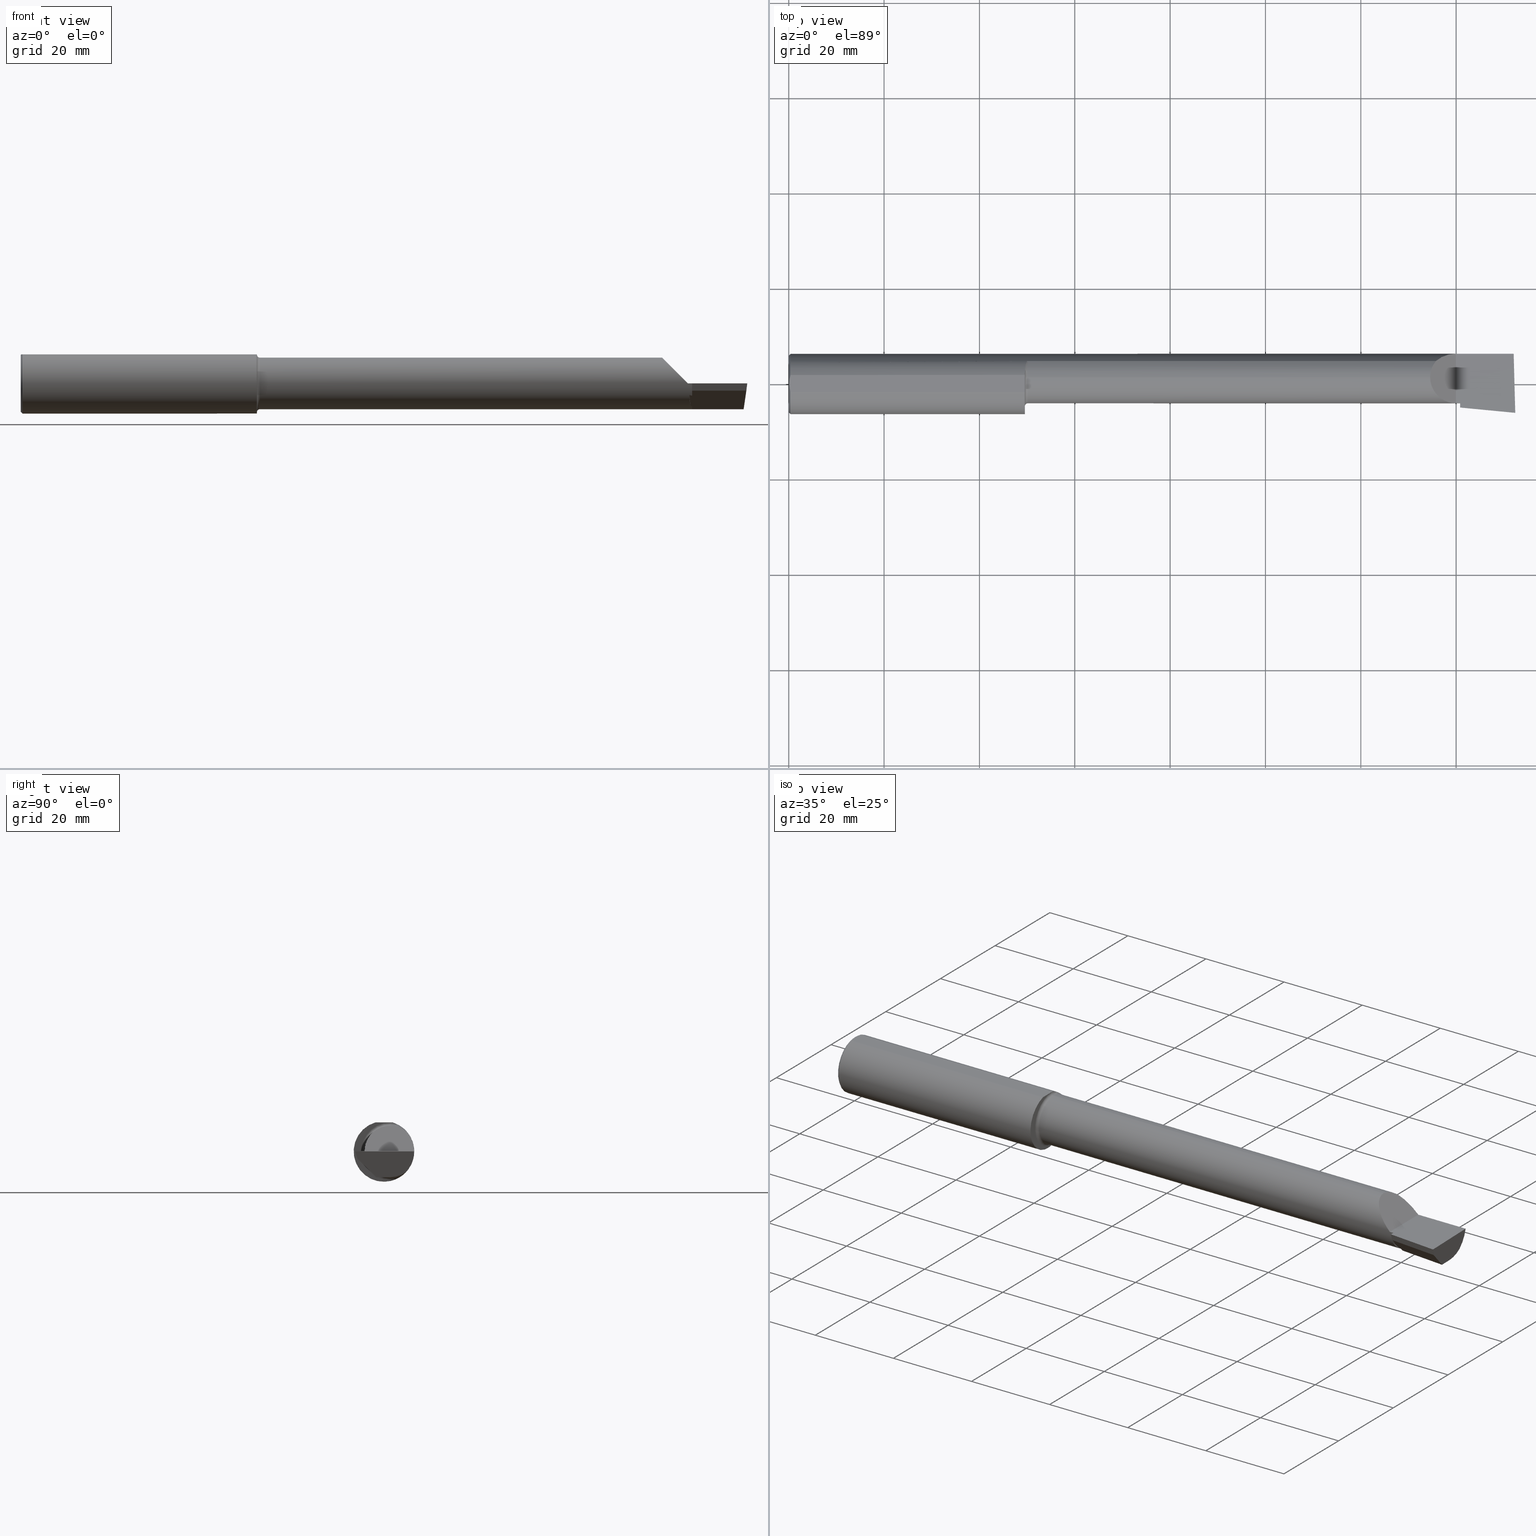
[diagram: canonical four-view strip — front | top / right | iso, engineering-drawing reading convention]
A machine part, canonical four-view strip (front | top / right | iso — engineering-drawing reading convention). The complete STEP part file that produces these views, byte-faithful:
ISO-10303-21;
HEADER;
FILE_DESCRIPTION (( 'STEP AP203' ),
    '1' );
FILE_NAME ('212169-LHB4904000.STEP',
    '2024-08-27T21:28:56',
    ( '' ),
    ( '' ),
    'SwSTEP 2.0',
    'SolidWorks 2024',
    '' );
FILE_SCHEMA (( 'CONFIG_CONTROL_DESIGN' ));
ENDSEC;

DATA;
#1 = CARTESIAN_POINT ( 'NONE',  ( 1.950000000000000844, -0.06997856814768405043, 0.2398500000000000076 ) ) ;
#2 = CARTESIAN_POINT ( 'NONE',  ( 6.000000000000000888, 0.05299999999999996381, -0.2131499999999999784 ) ) ;
#3 = VERTEX_POINT ( 'NONE', #376 ) ;
#4 = DIRECTION ( 'NONE',  ( 0.000000000000000000, 0.000000000000000000, 1.000000000000000000 ) ) ;
#5 = AXIS2_PLACEMENT_3D ( 'NONE', #303, #470, #649 ) ;
#6 = FACE_OUTER_BOUND ( 'NONE', #64, .T. ) ;
#7 = CC_DESIGN_APPROVAL ( #370, ( #191 ) ) ;
#8 = ORIENTED_EDGE ( 'NONE', *, *, #319, .F. ) ;
#9 = ADVANCED_FACE ( 'NONE', ( #199 ), #729, .F. ) ;
#10 = CARTESIAN_POINT ( 'NONE',  ( 0.004999999999999696527, 5.665694225652706815E-17, 0.2398500000000000076 ) ) ;
#11 = CARTESIAN_POINT ( 'NONE',  ( 1.967016733372314086, 0.1817333077058747859, -0.1714754572696086943 ) ) ;
#12 = ORIENTED_EDGE ( 'NONE', *, *, #687, .F. ) ;
#13 = ADVANCED_BREP_SHAPE_REPRESENTATION ( '212169-LHB4904000', ( #178, #490 ), #368 ) ;
#14 = FACE_OUTER_BOUND ( 'NONE', #93, .T. ) ;
#15 = DIRECTION ( 'NONE',  ( 0.000000000000000000, 0.000000000000000000, 1.000000000000000000 ) ) ;
#16 = ORIENTED_EDGE ( 'NONE', *, *, #273, .F. ) ;
#17 = EDGE_CURVE ( 'NONE', #272, #280, #430, .T. ) ;
#18 = CALENDAR_DATE ( 2024, 27, 8 ) ;
#19 = DIRECTION ( 'NONE',  ( 0.000000000000000000, -1.138839417068644240E-16, -1.000000000000000000 ) ) ;
#20 = AXIS2_PLACEMENT_3D ( 'NONE', #388, #748, #46 ) ;
#21 = VERTEX_POINT ( 'NONE', #318 ) ;
#22 = B_SPLINE_CURVE_WITH_KNOTS ( 'NONE', 3,
 ( #671, #549, #620, #254, #26, #314 ),
 .UNSPECIFIED., .F., .F.,
 ( 4, 2, 4 ),
 ( 0.004645211487754864060, 0.005540449869823556306, 0.006435688251892248551 ),
 .UNSPECIFIED. ) ;
#23 = PERSON_AND_ORGANIZATION_ROLE ( 'creator' ) ;
#24 = CARTESIAN_POINT ( 'NONE',  ( 6.000000000000000888, 0.2998500000000000609, 0.2398499999999999799 ) ) ;
#25 = CARTESIAN_POINT ( 'NONE',  ( 0.000000000000000000, 0.05299999999999998462, 0.000000000000000000 ) ) ;
#26 = CARTESIAN_POINT ( 'NONE',  ( 0.01181966702888973680, 0.05862357455657494359, 0.2398500000000000354 ) ) ;
#27 = ORIENTED_EDGE ( 'NONE', *, *, #338, .F. ) ;
#28 = DATE_TIME_ROLE ( 'creation_date' ) ;
#29 = DIRECTION ( 'NONE',  ( 0.000000000000000000, 0.000000000000000000, 1.000000000000000000 ) ) ;
#30 = ORIENTED_EDGE ( 'NONE', *, *, #551, .F. ) ;
#31 = CIRCLE ( 'NONE', #463, 0.2381500000000004447 ) ;
#32 = VECTOR ( 'NONE', #173, 39.37007874015748143 ) ;
#33 = EDGE_CURVE ( 'NONE', #72, #120, #344, .T. ) ;
#34 = CARTESIAN_POINT ( 'NONE',  ( 5.968970726278977956, 0.1868028301886785203, -0.1659208399614096885 ) ) ;
#35 = ORIENTED_EDGE ( 'NONE', *, *, #699, .F. ) ;
#36 = CARTESIAN_POINT ( 'NONE',  ( 1.973549916698494000, 0.1868028301886772713, 0.1659208399614111318 ) ) ;
#37 = DIRECTION ( 'NONE',  ( 1.000000000000000000, 0.000000000000000000, 0.000000000000000000 ) ) ;
#38 = EDGE_CURVE ( 'NONE', #550, #402, #79, .T. ) ;
#39 = CARTESIAN_POINT ( 'NONE',  ( 1.961269318387892202, 0.1703938977634084917, 0.1828127877825268810 ) ) ;
#40 = LINE ( 'NONE', #331, #89 ) ;
#41 = ORIENTED_EDGE ( 'NONE', *, *, #384, .F. ) ;
#42 = DIRECTION ( 'NONE',  ( -1.000000000000000000, -0.000000000000000000, -0.000000000000000000 ) ) ;
#43 = ORIENTED_EDGE ( 'NONE', *, *, #752, .T. ) ;
#44 = EDGE_CURVE ( 'NONE', #596, #346, #754, .T. ) ;
#45 = CARTESIAN_POINT ( 'NONE',  ( 5.544999999999999929, -0.05074392122494177787, -0.1861991442216453241 ) ) ;
#46 = DIRECTION ( 'NONE',  ( 0.000000000000000000, 0.000000000000000000, 1.000000000000000000 ) ) ;
#47 = ORIENTED_EDGE ( 'NONE', *, *, #613, .F. ) ;
#48 = ADVANCED_FACE ( 'NONE', ( #255 ), #499, .T. ) ;
#49 = DIRECTION ( 'NONE',  ( 0.000000000000000000, 0.000000000000000000, 1.000000000000000000 ) ) ;
#50 = CARTESIAN_POINT ( 'NONE',  ( 1.950000000000000844, 0.06997856814768384226, 0.2398500000000000076 ) ) ;
#51 = ORIENTED_EDGE ( 'NONE', *, *, #603, .T. ) ;
#52 = VECTOR ( 'NONE', #328, 39.37007874015748143 ) ;
#53 = LOCAL_TIME ( 14, 28, 56.00000000000000000, #540 ) ;
#54 = CARTESIAN_POINT ( 'NONE',  ( 5.965646124279056828, 0.1021668565906564824, -0.2131500000000002559 ) ) ;
#55 = CC_DESIGN_PERSON_AND_ORGANIZATION_ASSIGNMENT ( #478, #670, ( #112 ) ) ;
#56 = LINE ( 'NONE', #155, #488 ) ;
#57 = ORIENTED_EDGE ( 'NONE', *, *, #316, .T. ) ;
#58 = CARTESIAN_POINT ( 'NONE',  ( 5.519046046773249614, -0.1728339770796962493, -0.06000000000000024064 ) ) ;
#59 = DIRECTION ( 'NONE',  ( 1.000000000000000000, 0.000000000000000000, 0.000000000000000000 ) ) ;
#60 = ORIENTED_EDGE ( 'NONE', *, *, #642, .F. ) ;
#61 = EDGE_CURVE ( 'NONE', #550, #262, #669, .T. ) ;
#62 = DIRECTION ( 'NONE',  ( 0.000000000000000000, 0.000000000000000000, 1.000000000000000000 ) ) ;
#63 = CARTESIAN_POINT ( 'NONE',  ( 5.344079160038587517, 0.1868028301886764386, 0.1659208399614117424 ) ) ;
#64 = EDGE_LOOP ( 'NONE', ( #615, #762, #180, #720 ) ) ;
#65 = CARTESIAN_POINT ( 'NONE',  ( 5.984159346317754036, -0.1618214701366295083, -0.1165188729350214586 ) ) ;
#66 = VECTOR ( 'NONE', #439, 39.37007874015748143 ) ;
#67 = CARTESIAN_POINT ( 'NONE',  ( 0.01499999999999998904, 0.000000000000000000, 0.000000000000000000 ) ) ;
#68 = VERTEX_POINT ( 'NONE', #105 ) ;
#69 = CARTESIAN_POINT ( 'NONE',  ( 5.527364221733844118, -0.08644642713185432537, -0.1670589636038932180 ) ) ;
#70 = EDGE_CURVE ( 'NONE', #103, #480, #639, .T. ) ;
#71 = PLANE ( 'NONE',  #755 ) ;
#72 = VERTEX_POINT ( 'NONE', #693 ) ;
#73 = ADVANCED_FACE ( 'NONE', ( #98 ), #576, .F. ) ;
#74 = DIRECTION ( 'NONE',  ( 1.000000000000000000, 0.000000000000000000, 0.000000000000000000 ) ) ;
#75 = ORIENTED_EDGE ( 'NONE', *, *, #33, .T. ) ;
#76 = APPLICATION_PROTOCOL_DEFINITION ( 'international standard', 'config_control_design', 1994, #188 ) ;
#77 = CARTESIAN_POINT ( 'NONE',  ( 5.522499172395932021, -0.1369718963205483198, -0.09666230448512452833 ) ) ;
#78 = VECTOR ( 'NONE', #74, 39.37007874015748143 ) ;
#79 = LINE ( 'NONE', #426, #124 ) ;
#80 = PERSON_AND_ORGANIZATION ( #425, #503 ) ;
#81 = FACE_OUTER_BOUND ( 'NONE', #106, .T. ) ;
#82 = EDGE_LOOP ( 'NONE', ( #653, #27, #483, #364 ) ) ;
#83 = APPROVAL_DATE_TIME ( #721, #356 ) ;
#84 = DIRECTION ( 'NONE',  ( -1.104388423966789920E-16, 0.000000000000000000, -1.000000000000000000 ) ) ;
#85 = VERTEX_POINT ( 'NONE', #697 ) ;
#86 = CC_DESIGN_PERSON_AND_ORGANIZATION_ASSIGNMENT ( #428, #23, ( #491 ) ) ;
#87 = PLANE ( 'NONE',  #450 ) ;
#88 = VERTEX_POINT ( 'NONE', #50 ) ;
#89 = VECTOR ( 'NONE', #688, 39.37007874015748143 ) ;
#90 = AXIS2_PLACEMENT_3D ( 'NONE', #704, #177, #121 ) ;
#91 = CARTESIAN_POINT ( 'NONE',  ( 1.972248316546591385, 0.1862833954073865594, 0.1665066509556033247 ) ) ;
#92 = ADVANCED_FACE ( 'NONE', ( #744 ), #681, .T. ) ;
#93 = EDGE_LOOP ( 'NONE', ( #123, #511, #672, #406 ) ) ;
#94 = CARTESIAN_POINT ( 'NONE',  ( 5.537805100486888676, -0.1353538176560926398, -0.09979413120599961440 ) ) ;
#95 = CARTESIAN_POINT ( 'NONE',  ( 0.01499999999999998904, 0.000000000000000000, 0.000000000000000000 ) ) ;
#96 = EDGE_LOOP ( 'NONE', ( #128, #170, #712, #216, #41 ) ) ;
#97 = CARTESIAN_POINT ( 'NONE',  ( 5.540481425188588105, -0.04977693083852371969, -0.1867379188486353314 ) ) ;
#98 = FACE_OUTER_BOUND ( 'NONE', #418, .T. ) ;
#99 = VERTEX_POINT ( 'NONE', #340 ) ;
#100 = VECTOR ( 'NONE', #217, 39.37007874015748143 ) ;
#101 = CARTESIAN_POINT ( 'NONE',  ( 0.01499999999999998904, 0.000000000000000000, 0.000000000000000000 ) ) ;
#102 = CARTESIAN_POINT ( 'NONE',  ( 1.950000000000000844, 0.05299999999999998462, 0.000000000000000000 ) ) ;
#103 = VERTEX_POINT ( 'NONE', #504 ) ;
#104 = DIRECTION ( 'NONE',  ( -1.000000000000000000, -0.000000000000000000, -0.000000000000000000 ) ) ;
#105 = CARTESIAN_POINT ( 'NONE',  ( 1.950000000000000844, 0.08036415094339427467, -0.2365726648265757404 ) ) ;
#106 = EDGE_LOOP ( 'NONE', ( #305, #647, #759, #456 ) ) ;
#107 = FACE_OUTER_BOUND ( 'NONE', #588, .T. ) ;
#108 = DIRECTION ( 'NONE',  ( -0.02677973311239235238, 0.9996413586354002678, -2.566230189353009768E-16 ) ) ;
#109 =( BOUNDED_CURVE ( )  B_SPLINE_CURVE ( 3, ( #654, #69, #423, #659 ),
 .UNSPECIFIED., .F., .F. ) 
 B_SPLINE_CURVE_WITH_KNOTS ( ( 4, 4 ),
 ( 5.205137849474834155, 5.812503257434993742 ),
 .UNSPECIFIED. ) 
 CURVE ( )  GEOMETRIC_REPRESENTATION_ITEM ( )  RATIONAL_B_SPLINE_CURVE ( ( 1.000000000000000000, 0.9694944665783493676, 0.9694944665783493676, 1.000000000000000000 ) ) 
 REPRESENTATION_ITEM ( '' )  );
#110 = VERTEX_POINT ( 'NONE', #573 ) ;
#111 = TOROIDAL_SURFACE ( 'NONE', #307, 0.2381500000000004447, 0.02499999999999995628 ) ;
#112 = PRODUCT_DEFINITION_FORMATION_WITH_SPECIFIED_SOURCE ( 'ANY', '', #167, .NOT_KNOWN. ) ;
#113 = PLANE ( 'NONE',  #150 ) ;
#114 = DIRECTION ( 'NONE',  ( 0.000000000000000000, 0.000000000000000000, 1.000000000000000000 ) ) ;
#115 = EDGE_CURVE ( 'NONE', #464, #21, #153, .T. ) ;
#116 = ORIENTED_EDGE ( 'NONE', *, *, #381, .T. ) ;
#117 = CALENDAR_DATE ( 2024, 27, 8 ) ;
#118 = CARTESIAN_POINT ( 'NONE',  ( 5.296849999999999170, 0.05299999999999998462, 0.2131500000000002004 ) ) ;
#119 = DIRECTION ( 'NONE',  ( 0.000000000000000000, 0.000000000000000000, 1.000000000000000000 ) ) ;
#120 = VERTEX_POINT ( 'NONE', #215 ) ;
#121 = DIRECTION ( 'NONE',  ( 0.000000000000000000, 0.000000000000000000, 1.000000000000000000 ) ) ;
#122 = DIRECTION ( 'NONE',  ( -1.000000000000000000, -0.000000000000000000, -0.000000000000000000 ) ) ;
#123 = ORIENTED_EDGE ( 'NONE', *, *, #619, .F. ) ;
#124 = VECTOR ( 'NONE', #37, 39.37007874015748143 ) ;
#125 = AXIS2_PLACEMENT_3D ( 'NONE', #24, #19, #147 ) ;
#126 = CARTESIAN_POINT ( 'NONE',  ( 3.760000000000000231, 0.1868028301886785203, 0.1659208399614096885 ) ) ;
#127 = PLANE ( 'NONE',  #5 ) ;
#128 = ORIENTED_EDGE ( 'NONE', *, *, #165, .F. ) ;
#129 = CARTESIAN_POINT ( 'NONE',  ( 1.975000000000000755, 0.05300000000000001238, -0.2131500000000003947 ) ) ;
#130 = ORIENTED_EDGE ( 'NONE', *, *, #17, .F. ) ;
#131 = CC_DESIGN_PERSON_AND_ORGANIZATION_ASSIGNMENT ( #202, #420, ( #191 ) ) ;
#132 = CARTESIAN_POINT ( 'NONE',  ( 1.975000000000000755, 0.05299999999999998462, 0.000000000000000000 ) ) ;
#133 = VERTEX_POINT ( 'NONE', #684 ) ;
#134 =( CONVERSION_BASED_UNIT ( 'INCH', #489 ) LENGTH_UNIT ( ) NAMED_UNIT ( #387 ) );
#135 = AXIS2_PLACEMENT_3D ( 'NONE', #141, #208, #148 ) ;
#136 = CARTESIAN_POINT ( 'NONE',  ( 6.000000000000000888, -0.2500000000000000555, -2.390366994456230070E-16 ) ) ;
#137 = AXIS2_PLACEMENT_3D ( 'NONE', #457, #594, #352 ) ;
#138 = ORIENTED_EDGE ( 'NONE', *, *, #319, .T. ) ;
#139 = PERSON_AND_ORGANIZATION_ROLE ( 'design_supplier' ) ;
#140 = FACE_OUTER_BOUND ( 'NONE', #329, .T. ) ;
#141 = CARTESIAN_POINT ( 'NONE',  ( 0.000000000000000000, 0.000000000000000000, 0.000000000000000000 ) ) ;
#142 = DATE_AND_TIME ( #194, #657 ) ;
#143 = LINE ( 'NONE', #722, #645 ) ;
#144 = VERTEX_POINT ( 'NONE', #397 ) ;
#145 = UNCERTAINTY_MEASURE_WITH_UNIT (LENGTH_MEASURE( 1.000000000000000082E-05 ), #134, 'distance_accuracy_value', 'NONE');
#146 = EDGE_CURVE ( 'NONE', #315, #296, #56, .T. ) ;
#147 = DIRECTION ( 'NONE',  ( 0.000000000000000000, 1.000000000000000000, -1.138839417068644240E-16 ) ) ;
#148 = DIRECTION ( 'NONE',  ( 0.000000000000000000, 0.000000000000000000, 1.000000000000000000 ) ) ;
#149 = VECTOR ( 'NONE', #256, 39.37007874015748854 ) ;
#150 = AXIS2_PLACEMENT_3D ( 'NONE', #58, #526, #473 ) ;
#151 = APPROVAL_ROLE ( '' ) ;
#152 = DIRECTION ( 'NONE',  ( 0.000000000000000000, -0.3019700370129928535, 0.9533174165755975427 ) ) ;
#153 = LINE ( 'NONE', #169, #259 ) ;
#154 = LINE ( 'NONE', #532, #32 ) ;
#155 = CARTESIAN_POINT ( 'NONE',  ( 5.966986964385321279, 0.05211560253549542970, -0.2131499999999999784 ) ) ;
#156 = ORIENTED_EDGE ( 'NONE', *, *, #186, .F. ) ;
#157 = DIRECTION ( 'NONE',  ( 1.000000000000000000, 0.000000000000000000, 0.000000000000000000 ) ) ;
#158 = DIRECTION ( 'NONE',  ( -1.000000000000000000, -0.000000000000000000, -0.000000000000000000 ) ) ;
#159 = CONICAL_SURFACE ( 'NONE', #555, 0.2498499999999999888, 0.7853981633974603804 ) ;
#160 = ORIENTED_EDGE ( 'NONE', *, *, #460, .F. ) ;
#161 = VECTOR ( 'NONE', #565, 39.37007874015748143 ) ;
#162 = CC_DESIGN_APPROVAL ( #455, ( #112 ) ) ;
#163 = CARTESIAN_POINT ( 'NONE',  ( 5.510000000000000675, -0.1601500000000002644, -1.849216666712503932E-16 ) ) ;
#164 = CARTESIAN_POINT ( 'NONE',  ( 0.000000000000000000, 0.05299999999999998462, 0.000000000000000000 ) ) ;
#165 = EDGE_CURVE ( 'NONE', #708, #85, #623, .T. ) ;
#166 = ORIENTED_EDGE ( 'NONE', *, *, #500, .F. ) ;
#167 = PRODUCT ( '212169-LHB4904000', '212169-LHB4904000', '', ( #263 ) ) ;
#168 = CARTESIAN_POINT ( 'NONE',  ( 1.969294329172794011, 0.1841965204963167124, 0.1688138510234158673 ) ) ;
#169 = CARTESIAN_POINT ( 'NONE',  ( 3.760000000000000231, 0.1868028301886785203, -0.1659208399614096885 ) ) ;
#170 = ORIENTED_EDGE ( 'NONE', *, *, #715, .T. ) ;
#171 = COORDINATED_UNIVERSAL_TIME_OFFSET ( 8, 0, .BEHIND. ) ;
#172 = ADVANCED_FACE ( 'NONE', ( #751 ), #385, .F. ) ;
#173 = DIRECTION ( 'NONE',  ( -0.9953961983671787417, 0.09584575252022423109, -2.614745597736306358E-17 ) ) ;
#174 = LINE ( 'NONE', #408, #78 ) ;
#175 = ORIENTED_EDGE ( 'NONE', *, *, #392, .T. ) ;
#176 = AXIS2_PLACEMENT_3D ( 'NONE', #424, #492, #541 ) ;
#177 = DIRECTION ( 'NONE',  ( -1.000000000000000000, -0.000000000000000000, -0.000000000000000000 ) ) ;
#178 = MANIFOLD_SOLID_BREP ( 'Extrude7', #355 ) ;
#179 = CARTESIAN_POINT ( 'NONE',  ( 5.970126340504450013, -0.06507190623553218978, -0.2131499999999999506 ) ) ;
#180 = ORIENTED_EDGE ( 'NONE', *, *, #306, .F. ) ;
#181 = DIRECTION ( 'NONE',  ( 0.000000000000000000, 0.000000000000000000, -1.000000000000000000 ) ) ;
#182 = DIRECTION ( 'NONE',  ( -0.1175789623991730370, 0.000000000000000000, -0.9930635365378861490 ) ) ;
#183 = ORIENTED_EDGE ( 'NONE', *, *, #283, .T. ) ;
#184 = EDGE_CURVE ( 'NONE', #640, #272, #626, .T. ) ;
#185 = CARTESIAN_POINT ( 'NONE',  ( 0.000000000000000000, 0.000000000000000000, 0.000000000000000000 ) ) ;
#186 = EDGE_CURVE ( 'NONE', #698, #280, #40, .T. ) ;
#187 = ORIENTED_EDGE ( 'NONE', *, *, #513, .F. ) ;
#188 = APPLICATION_CONTEXT ( 'configuration controlled 3d designs of mechanical parts and assemblies' ) ;
#189 = AXIS2_PLACEMENT_3D ( 'NONE', #164, #510, #630 ) ;
#190 = CARTESIAN_POINT ( 'NONE',  ( 5.296849999999997394, -0.07186037918017490478, 0.2131500000000002004 ) ) ;
#191 = SECURITY_CLASSIFICATION ( '', '', #731 ) ;
#192 = DIRECTION ( 'NONE',  ( 0.000000000000000000, 0.000000000000000000, 1.000000000000000000 ) ) ;
#193 = ORIENTED_EDGE ( 'NONE', *, *, #547, .T. ) ;
#194 = CALENDAR_DATE ( 2024, 27, 8 ) ;
#195 = ORIENTED_EDGE ( 'NONE', *, *, #392, .F. ) ;
#196 = APPROVAL_STATUS ( 'not_yet_approved' ) ;
#197 = EDGE_CURVE ( 'NONE', #480, #346, #451, .T. ) ;
#198 = DIRECTION ( 'NONE',  ( 0.000000000000000000, -1.000000000000000000, 2.565624566557734573E-16 ) ) ;
#199 = FACE_OUTER_BOUND ( 'NONE', #520, .T. ) ;
#200 = CARTESIAN_POINT ( 'NONE',  ( 1.975000000000000755, 0.05299999999999998462, 0.2131500000000003947 ) ) ;
#201 = ORIENTED_EDGE ( 'NONE', *, *, #33, .F. ) ;
#202 = PERSON_AND_ORGANIZATION ( #425, #503 ) ;
#203 = CARTESIAN_POINT ( 'NONE',  ( 0.005880636388018911122, -0.02358947477502554638, 0.2398499999999999799 ) ) ;
#204 = ORIENTED_EDGE ( 'NONE', *, *, #562, .T. ) ;
#205 = EDGE_CURVE ( 'NONE', #120, #72, #487, .T. ) ;
#206 = APPROVAL_DATE_TIME ( #641, #370 ) ;
#207 = CARTESIAN_POINT ( 'NONE',  ( 0.01180609504125302439, -0.05857511741890349816, 0.2398500000000000354 ) ) ;
#208 = DIRECTION ( 'NONE',  ( -1.000000000000000000, -0.000000000000000000, -0.000000000000000000 ) ) ;
#209 = EDGE_CURVE ( 'NONE', #110, #727, #31, .T. ) ;
#210 = DIRECTION ( 'NONE',  ( 0.000000000000000000, 0.000000000000000000, -1.000000000000000000 ) ) ;
#211 = DIRECTION ( 'NONE',  ( 0.000000000000000000, 0.000000000000000000, 1.000000000000000000 ) ) ;
#212 = AXIS2_PLACEMENT_3D ( 'NONE', #379, #373, #621 ) ;
#213 = PRODUCT_RELATED_PRODUCT_CATEGORY ( 'detail', '', ( #167 ) ) ;
#214 = CARTESIAN_POINT ( 'NONE',  ( 1.970147539572910000, 0.1849815983377215145, 0.1679517088135090153 ) ) ;
#215 = CARTESIAN_POINT ( 'NONE',  ( 0.000000000000000000, 0.000000000000000000, -0.2348499999999996424 ) ) ;
#216 = ORIENTED_EDGE ( 'NONE', *, *, #381, .F. ) ;
#217 = DIRECTION ( 'NONE',  ( 0.9953961983671787417, -0.09584575252022418945, -1.087413588444485978E-16 ) ) ;
#218 = DIRECTION ( 'NONE',  ( -1.000000000000000000, -0.000000000000000000, -0.000000000000000000 ) ) ;
#219 = ORIENTED_EDGE ( 'NONE', *, *, #433, .T. ) ;
#220 = CARTESIAN_POINT ( 'NONE',  ( 5.531082512009721341, -0.04783050615766612501, -0.1877927888072088158 ) ) ;
#221 = EDGE_CURVE ( 'NONE', #88, #727, #332, .T. ) ;
#222 = DIRECTION ( 'NONE',  ( -0.09584575252022360659, -0.9953961983671787417, 0.000000000000000000 ) ) ;
#223 = ORIENTED_EDGE ( 'NONE', *, *, #70, .T. ) ;
#224 = AXIS2_PLACEMENT_3D ( 'NONE', #244, #302, #4 ) ;
#225 = APPLICATION_CONTEXT ( 'configuration controlled 3d designs of mechanical parts and assemblies' ) ;
#226 = CARTESIAN_POINT ( 'NONE',  ( 1.952700393434439796, 0.1312406203802467530, 0.2128933010837861517 ) ) ;
#227 = CARTESIAN_POINT ( 'NONE',  ( 5.544999999999999929, 0.05299999999999996381, -0.2131499999999999784 ) ) ;
#228 = VERTEX_POINT ( 'NONE', #507 ) ;
#229 = EDGE_CURVE ( 'NONE', #596, #110, #617, .T. ) ;
#230 = DIRECTION ( 'NONE',  ( 0.000000000000000000, 0.000000000000000000, 1.000000000000000000 ) ) ;
#231 = CARTESIAN_POINT ( 'NONE',  ( 1.970138573936400572, 0.1849738682364307496, -0.1679602226613276517 ) ) ;
#232 = ORIENTED_EDGE ( 'NONE', *, *, #146, .T. ) ;
#233 = DIRECTION ( 'NONE',  ( 1.000000000000000000, 0.000000000000000000, 0.000000000000000000 ) ) ;
#234 = CARTESIAN_POINT ( 'NONE',  ( 1.975000000000000755, 0.1868028301886771048, -0.1659208399614111318 ) ) ;
#235 = EDGE_LOOP ( 'NONE', ( #627, #716, #160, #371, #723 ) ) ;
#236 = VECTOR ( 'NONE', #447, 39.37007874015748143 ) ;
#237 = VECTOR ( 'NONE', #469, 39.37007874015748143 ) ;
#238 = DIRECTION ( 'NONE',  ( 0.7071067811865389130, 0.000000000000000000, -0.7071067811865560104 ) ) ;
#239 = LINE ( 'NONE', #710, #656 ) ;
#240 = EDGE_LOOP ( 'NONE', ( #285, #459 ) ) ;
#241 = DIRECTION ( 'NONE',  ( -1.000000000000000000, -0.000000000000000000, -0.000000000000000000 ) ) ;
#242 = CARTESIAN_POINT ( 'NONE',  ( 5.992367153641839472, -0.2184096159518783276, -0.06000000000000023370 ) ) ;
#243 = ORIENTED_EDGE ( 'NONE', *, *, #273, .T. ) ;
#244 = CARTESIAN_POINT ( 'NONE',  ( 0.01499999999999998904, 0.000000000000000000, 0.000000000000000000 ) ) ;
#245 = CARTESIAN_POINT ( 'NONE',  ( 1.951227564404961701, 0.1217005943024271619, -0.2193523119135149246 ) ) ;
#246 = VERTEX_POINT ( 'NONE', #394 ) ;
#247 = AXIS2_PLACEMENT_3D ( 'NONE', #758, #42, #275 ) ;
#248 = DATE_AND_TIME ( #18, #53 ) ;
#249 = APPROVAL_PERSON_ORGANIZATION ( #612, #370, #151 ) ;
#250 = PLANE ( 'NONE',  #125 ) ;
#251 = EDGE_LOOP ( 'NONE', ( #412, #51, #223, #554 ) ) ;
#252 = ADVANCED_FACE ( 'NONE', ( #634 ), #159, .T. ) ;
#253 = COORDINATED_UNIVERSAL_TIME_OFFSET ( 8, 0, .BEHIND. ) ;
#254 = CARTESIAN_POINT ( 'NONE',  ( 0.009312860630924877509, 0.04712480857212048013, 0.2398500000000000076 ) ) ;
#255 = FACE_OUTER_BOUND ( 'NONE', #235, .T. ) ;
#256 = DIRECTION ( 'NONE',  ( 0.02677973311239231768, -0.9996413586354002678, -2.916664445122107707E-18 ) ) ;
#257 = EDGE_LOOP ( 'NONE', ( #201, #219, #116, #138, #47 ) ) ;
#258 = COORDINATED_UNIVERSAL_TIME_OFFSET ( 8, 0, .BEHIND. ) ;
#259 = VECTOR ( 'NONE', #443, 39.37007874015748143 ) ;
#260 = CARTESIAN_POINT ( 'NONE',  ( 0.004999999999999696527, 5.665694225652706815E-17, 0.2398500000000000076 ) ) ;
#261 = ADVANCED_FACE ( 'NONE', ( #299 ), #417, .T. ) ;
#262 = VERTEX_POINT ( 'NONE', #534 ) ;
#263 = MECHANICAL_CONTEXT ( 'NONE', #188, 'mechanical' ) ;
#264 = PLANE ( 'NONE',  #543 ) ;
#265 = CARTESIAN_POINT ( 'NONE',  ( 1.950000000000000844, -0.1851500000000004531, 0.000000000000000000 ) ) ;
#266 = FACE_OUTER_BOUND ( 'NONE', #584, .T. ) ;
#267 = CC_DESIGN_PERSON_AND_ORGANIZATION_ASSIGNMENT ( #725, #139, ( #112 ) ) ;
#268 = ORIENTED_EDGE ( 'NONE', *, *, #316, .F. ) ;
#269 = CARTESIAN_POINT ( 'NONE',  ( 0.000000000000000000, 0.000000000000000000, 0.000000000000000000 ) ) ;
#270 = CARTESIAN_POINT ( 'NONE',  ( 5.510000000000000675, -0.2500000000000000555, -1.849216666712503932E-16 ) ) ;
#271 = AXIS2_PLACEMENT_3D ( 'NONE', #629, #380, #747 ) ;
#272 = VERTEX_POINT ( 'NONE', #292 ) ;
#273 = EDGE_CURVE ( 'NONE', #272, #395, #239, .T. ) ;
#274 = FACE_OUTER_BOUND ( 'NONE', #410, .T. ) ;
#275 = DIRECTION ( 'NONE',  ( 0.000000000000000000, 0.000000000000000000, 1.000000000000000000 ) ) ;
#276 = ORIENTED_EDGE ( 'NONE', *, *, #742, .T. ) ;
#277 = EDGE_CURVE ( 'NONE', #296, #480, #595, .T. ) ;
#278 = CARTESIAN_POINT ( 'NONE',  ( 5.535842168685241482, -0.04880577283880128958, -0.1872691444557821050 ) ) ;
#279 = DIRECTION ( 'NONE',  ( 1.000000000000000000, 0.000000000000000000, 0.000000000000000000 ) ) ;
#280 = VERTEX_POINT ( 'NONE', #242 ) ;
#281 = CARTESIAN_POINT ( 'NONE',  ( 1.950000000000000844, 0.08036415094339427467, 0.2365726648265757404 ) ) ;
#282 = CARTESIAN_POINT ( 'NONE',  ( 0.000000000000000000, -0.06997856814768378675, 0.2398499999999999244 ) ) ;
#283 = EDGE_CURVE ( 'NONE', #133, #88, #174, .T. ) ;
#284 = AXIS2_PLACEMENT_3D ( 'NONE', #67, #348, #192 ) ;
#285 = ORIENTED_EDGE ( 'NONE', *, *, #500, .T. ) ;
#286 = AXIS2_PLACEMENT_3D ( 'NONE', #399, #241, #230 ) ;
#287 = LINE ( 'NONE', #700, #544 ) ;
#288 = CARTESIAN_POINT ( 'NONE',  ( 0.000000000000000000, 0.000000000000000000, 0.000000000000000000 ) ) ;
#289 = EDGE_CURVE ( 'NONE', #402, #395, #523, .T. ) ;
#290 = ORIENTED_EDGE ( 'NONE', *, *, #663, .T. ) ;
#291 = DIRECTION ( 'NONE',  ( 0.000000000000000000, 1.000000000000000000, -1.138839417068644240E-16 ) ) ;
#292 = CARTESIAN_POINT ( 'NONE',  ( 5.544999999999999929, -0.1753330585328634617, -0.06000000000000024758 ) ) ;
#293 = ORIENTED_EDGE ( 'NONE', *, *, #409, .T. ) ;
#294 = CARTESIAN_POINT ( 'NONE',  ( 5.510000000000000675, 0.2498499999999998222, -1.849216666712503932E-16 ) ) ;
#295 = CARTESIAN_POINT ( 'NONE',  ( 5.313215146136122335, 0.1485302233682032902, 0.1967848538638768408 ) ) ;
#296 = VERTEX_POINT ( 'NONE', #458 ) ;
#297 = VECTOR ( 'NONE', #572, 39.37007874015748143 ) ;
#298 = CARTESIAN_POINT ( 'NONE',  ( 5.390325100969864280, 0.2278791102234764276, 0.1196748990301352844 ) ) ;
#299 = FACE_OUTER_BOUND ( 'NONE', #341, .T. ) ;
#300 = ORIENTED_EDGE ( 'NONE', *, *, #289, .F. ) ;
#301 = ADVANCED_FACE ( 'NONE', ( #353 ), #71, .T. ) ;
#302 = DIRECTION ( 'NONE',  ( -1.000000000000000000, -0.000000000000000000, -0.000000000000000000 ) ) ;
#303 = CARTESIAN_POINT ( 'NONE',  ( 5.544999999999999929, -0.2043384830701200916, 0.000000000000000000 ) ) ;
#304 = APPROVAL_ROLE ( '' ) ;
#305 = ORIENTED_EDGE ( 'NONE', *, *, #209, .F. ) ;
#306 = EDGE_CURVE ( 'NONE', #21, #68, #643, .T. ) ;
#307 = AXIS2_PLACEMENT_3D ( 'NONE', #421, #664, #310 ) ;
#308 = CALENDAR_DATE ( 2024, 27, 8 ) ;
#309 = AXIS2_PLACEMENT_3D ( 'NONE', #327, #104, #49 ) ;
#310 = DIRECTION ( 'NONE',  ( 0.000000000000000000, 0.000000000000000000, 1.000000000000000000 ) ) ;
#311 = ADVANCED_FACE ( 'NONE', ( #538 ), #127, .F. ) ;
#312 = ORIENTED_EDGE ( 'NONE', *, *, #221, .T. ) ;
#313 =( NAMED_UNIT ( * ) PLANE_ANGLE_UNIT ( ) SI_UNIT ( $, .RADIAN. ) );
#314 = CARTESIAN_POINT ( 'NONE',  ( 0.01499999999999998904, 0.06997856814768384226, 0.2398499999999999244 ) ) ;
#315 = VERTEX_POINT ( 'NONE', #179 ) ;
#316 = EDGE_CURVE ( 'NONE', #68, #708, #679, .T. ) ;
#317 = CARTESIAN_POINT ( 'NONE',  ( 0.009274236576542723223, -0.04692405468904862348, 0.2398500000000000354 ) ) ;
#318 = CARTESIAN_POINT ( 'NONE',  ( 1.975000000000000755, 0.1868028301886771048, -0.1659208399614111318 ) ) ;
#319 = EDGE_CURVE ( 'NONE', #133, #228, #357, .T. ) ;
#320 = AXIS2_PLACEMENT_3D ( 'NONE', #265, #436, #560 ) ;
#321 = AXIS2_PLACEMENT_3D ( 'NONE', #185, #701, #15 ) ;
#322 = FACE_OUTER_BOUND ( 'NONE', #675, .T. ) ;
#323 = ORIENTED_EDGE ( 'NONE', *, *, #695, .T. ) ;
#324 = CC_DESIGN_DATE_AND_TIME_ASSIGNMENT ( #142, #374, ( #191 ) ) ;
#325 = CARTESIAN_POINT ( 'NONE',  ( 6.001130543297605868, -0.2382588589380724708, -2.391615553386899761E-16 ) ) ;
#326 = ORIENTED_EDGE ( 'NONE', *, *, #562, .F. ) ;
#327 = CARTESIAN_POINT ( 'NONE',  ( 5.544999999999999929, 0.05299999999999998462, 0.000000000000000000 ) ) ;
#328 = DIRECTION ( 'NONE',  ( -1.000000000000000000, -0.000000000000000000, -0.000000000000000000 ) ) ;
#329 = EDGE_LOOP ( 'NONE', ( #354, #75 ) ) ;
#330 = CARTESIAN_POINT ( 'NONE',  ( 1.975000000000000755, 0.1868028301886773823, 0.1659208399614109652 ) ) ;
#331 = CARTESIAN_POINT ( 'NONE',  ( 5.983858394183930507, -0.1964039090909500962, -0.1268853457175433408 ) ) ;
#332 = CIRCLE ( 'NONE', #247, 0.2498499999999999888 ) ;
#333 = CIRCLE ( 'NONE', #309, 0.2131499999999999784 ) ;
#334 = ADVANCED_FACE ( 'NONE', ( #6 ), #718, .F. ) ;
#335 = ORIENTED_EDGE ( 'NONE', *, *, #537, .T. ) ;
#336 = CARTESIAN_POINT ( 'NONE',  ( 5.544999999999999929, -0.2196470971618797174, -0.01511331185988419763 ) ) ;
#337 = ORIENTED_EDGE ( 'NONE', *, *, #17, .T. ) ;
#338 = EDGE_CURVE ( 'NONE', #3, #689, #666, .T. ) ;
#339 = LINE ( 'NONE', #393, #618 ) ;
#340 = CARTESIAN_POINT ( 'NONE',  ( 5.544999999999999929, -0.05074392122494177787, -0.1861991442216453241 ) ) ;
#341 = EDGE_LOOP ( 'NONE', ( #361, #599, #602, #57, #391, #12, #8, #183, #312, #566, #434, #589, #471 ) ) ;
#342 = PRODUCT_DEFINITION_SHAPE ( 'NONE', 'NONE',  #491 ) ;
#343 = CARTESIAN_POINT ( 'NONE',  ( 5.540709139270314054, 0.05214584048607589367, -0.2900000000000012568 ) ) ;
#344 = CIRCLE ( 'NONE', #135, 0.2348499999999996424 ) ;
#345 = VECTOR ( 'NONE', #515, 39.37007874015748143 ) ;
#346 = VERTEX_POINT ( 'NONE', #129 ) ;
#347 = CARTESIAN_POINT ( 'NONE',  ( 5.968970726278977956, 0.1868028301886785203, -0.1659208399614096885 ) ) ;
#348 = DIRECTION ( 'NONE',  ( -1.000000000000000000, -0.000000000000000000, -0.000000000000000000 ) ) ;
#349 = ORIENTED_EDGE ( 'NONE', *, *, #184, .T. ) ;
#350 = CARTESIAN_POINT ( 'NONE',  ( 5.510000000000000675, -0.1601500000000002644, -1.849216666712503932E-16 ) ) ;
#351 = DIRECTION ( 'NONE',  ( 0.000000000000000000, -1.000000000000000000, 0.000000000000000000 ) ) ;
#352 = DIRECTION ( 'NONE',  ( -0.7071067811865520136, 0.000000000000000000, 0.7071067811865430208 ) ) ;
#353 = FACE_OUTER_BOUND ( 'NONE', #563, .T. ) ;
#354 = ORIENTED_EDGE ( 'NONE', *, *, #205, .T. ) ;
#355 = CLOSED_SHELL ( 'NONE', ( #521, #472, #252, #48, #437, #261, #362, #92, #415, #587, #683, #73, #497, #525, #419, #636, #334, #9, #311, #172, #301 ) ) ;
#356 = APPROVAL ( #552, 'UNSPECIFIED' ) ;
#357 = CIRCLE ( 'NONE', #284, 0.2498499999999999888 ) ;
#358 = CIRCLE ( 'NONE', #286, 0.2381500000000004447 ) ;
#359 = CARTESIAN_POINT ( 'NONE',  ( 0.01499999999999998904, 0.000000000000000000, -0.2498499999999999888 ) ) ;
#360 = CARTESIAN_POINT ( 'NONE',  ( 1.961285743882607902, 0.1704402150608093913, -0.1827701868778717209 ) ) ;
#361 = ORIENTED_EDGE ( 'NONE', *, *, #409, .F. ) ;
#362 = ADVANCED_FACE ( 'NONE', ( #482 ), #264, .F. ) ;
#363 = CARTESIAN_POINT ( 'NONE',  ( 1.975000000000000755, 0.05299999999999998462, 0.000000000000000000 ) ) ;
#364 = ORIENTED_EDGE ( 'NONE', *, *, #673, .F. ) ;
#365 = CARTESIAN_POINT ( 'NONE',  ( 5.544999999999999929, 0.05299999999999996381, -0.2131499999999999784 ) ) ;
#366 = VERTEX_POINT ( 'NONE', #429 ) ;
#367 =( LENGTH_UNIT ( ) NAMED_UNIT ( * ) SI_UNIT ( $, .METRE. ) );
#368 =( GEOMETRIC_REPRESENTATION_CONTEXT ( 3 ) GLOBAL_UNCERTAINTY_ASSIGNED_CONTEXT ( ( #145 ) ) GLOBAL_UNIT_ASSIGNED_CONTEXT ( ( #134, #313, #667 ) ) REPRESENTATION_CONTEXT ( 'NONE', 'WORKASPACE' ) );
#369 = CARTESIAN_POINT ( 'NONE',  ( 6.000000000000000888, 0.05299999999999996381, -0.2131499999999999784 ) ) ;
#370 = APPROVAL ( #196, 'UNSPECIFIED' ) ;
#371 = ORIENTED_EDGE ( 'NONE', *, *, #115, .F. ) ;
#372 = PLANE ( 'NONE',  #740 ) ;
#373 = DIRECTION ( 'NONE',  ( -0.000000000000000000, 1.000000000000000000, 1.224646799147353207E-16 ) ) ;
#374 = DATE_TIME_ROLE ( 'classification_date' ) ;
#375 = CARTESIAN_POINT ( 'NONE',  ( 5.979603243914508148, 0.2498499999999999333, -0.06185424669427569411 ) ) ;
#376 = CARTESIAN_POINT ( 'NONE',  ( 5.344079160038587517, 0.1868028301886764386, 0.1659208399614117424 ) ) ;
#377 = AXIS2_PLACEMENT_3D ( 'NONE', #714, #717, #114 ) ;
#378 = LINE ( 'NONE', #479, #149 ) ;
#379 = CARTESIAN_POINT ( 'NONE',  ( 1.975000000000000755, 0.05300000000000001238, -0.2381500000000004447 ) ) ;
#380 = DIRECTION ( 'NONE',  ( -1.000000000000000000, -0.000000000000000000, -0.000000000000000000 ) ) ;
#381 = EDGE_CURVE ( 'NONE', #650, #133, #22, .T. ) ;
#382 = DIRECTION ( 'NONE',  ( 0.000000000000000000, 0.000000000000000000, 1.000000000000000000 ) ) ;
#383 = CARTESIAN_POINT ( 'NONE',  ( 1.965861643147096993, 0.1799299906519278014, 0.1733704358813201452 ) ) ;
#384 = EDGE_CURVE ( 'NONE', #85, #650, #604, .T. ) ;
#385 = PLANE ( 'NONE',  #401 ) ;
#386 =( BOUNDED_CURVE ( )  B_SPLINE_CURVE ( 3, ( #45, #97, #278, #220 ),
 .UNSPECIFIED., .F., .F. ) 
 B_SPLINE_CURVE_WITH_KNOTS ( ( 4, 4 ),
 ( 3.425081864342415905, 3.440661644967336841 ),
 .UNSPECIFIED. ) 
 CURVE ( )  GEOMETRIC_REPRESENTATION_ITEM ( )  RATIONAL_B_SPLINE_CURVE ( ( 1.000000000000000000, 0.9999797726385939445, 0.9999797726385939445, 1.000000000000000000 ) ) 
 REPRESENTATION_ITEM ( '' )  );
#387 = DIMENSIONAL_EXPONENTS ( 1.000000000000000000, 0.000000000000000000, 0.000000000000000000, 0.000000000000000000, 0.000000000000000000, 0.000000000000000000, 0.000000000000000000 ) ;
#388 = CARTESIAN_POINT ( 'NONE',  ( 1.950000000000000844, 0.05299999999999998462, 0.000000000000000000 ) ) ;
#389 = AXIS2_PLACEMENT_3D ( 'NONE', #101, #157, #210 ) ;
#390 = VECTOR ( 'NONE', #233, 39.37007874015748143 ) ;
#391 = ORIENTED_EDGE ( 'NONE', *, *, #165, .T. ) ;
#392 = EDGE_CURVE ( 'NONE', #246, #698, #378, .T. ) ;
#393 = CARTESIAN_POINT ( 'NONE',  ( 4.678149108241350816E-32, 0.2498499999999999888, 4.235963549344508711E-16 ) ) ;
#394 = CARTESIAN_POINT ( 'NONE',  ( 5.986926801651457630, 0.2498499999999998222, -2.376133405444120600E-16 ) ) ;
#395 = VERTEX_POINT ( 'NONE', #545 ) ;
#396 = LINE ( 'NONE', #743, #605 ) ;
#397 = CARTESIAN_POINT ( 'NONE',  ( 1.975000000000000755, 0.1868028301886773823, 0.1659208399614109652 ) ) ;
#398 = ORIENTED_EDGE ( 'NONE', *, *, #384, .T. ) ;
#399 = CARTESIAN_POINT ( 'NONE',  ( 1.950000000000000844, 0.05299999999999998462, 0.000000000000000000 ) ) ;
#400 = CARTESIAN_POINT ( 'NONE',  ( 1.969285582744840113, 0.1841881072713787981, -0.1688230283719373837 ) ) ;
#401 = AXIS2_PLACEMENT_3D ( 'NONE', #343, #570, #222 ) ;
#402 = VERTEX_POINT ( 'NONE', #495 ) ;
#403 = CC_DESIGN_SECURITY_CLASSIFICATION ( #191, ( #112 ) ) ;
#404 = LINE ( 'NONE', #65, #237 ) ;
#405 = EDGE_CURVE ( 'NONE', #346, #493, #580, .T. ) ;
#406 = ORIENTED_EDGE ( 'NONE', *, *, #61, .T. ) ;
#407 = CARTESIAN_POINT ( 'NONE',  ( 5.296849999999999170, 0.05299999999999998462, 0.2131500000000002004 ) ) ;
#408 = CARTESIAN_POINT ( 'NONE',  ( 0.000000000000000000, 0.06997856814768384226, 0.2398499999999999244 ) ) ;
#409 = EDGE_CURVE ( 'NONE', #464, #246, #737, .T. ) ;
#410 = EDGE_LOOP ( 'NONE', ( #535, #702, #486, #542, #398 ) ) ;
#411 = CARTESIAN_POINT ( 'NONE',  ( 5.544999999999999929, -0.2500000000000000555, -1.887870261551340527E-16 ) ) ;
#412 = ORIENTED_EDGE ( 'NONE', *, *, #146, .F. ) ;
#413 = AXIS2_PLACEMENT_3D ( 'NONE', #288, #739, #211 ) ;
#414 = CIRCLE ( 'NONE', #569, 0.02499999999999993894 ) ;
#415 = ADVANCED_FACE ( 'NONE', ( #485 ), #87, .F. ) ;
#416 = PERSON_AND_ORGANIZATION ( #425, #503 ) ;
#417 = CYLINDRICAL_SURFACE ( 'NONE', #321, 0.2498499999999999888 ) ;
#418 = EDGE_LOOP ( 'NONE', ( #539, #193, #611 ) ) ;
#419 = ADVANCED_FACE ( 'NONE', ( #728 ), #250, .F. ) ;
#420 = PERSON_AND_ORGANIZATION_ROLE ( 'classification_officer' ) ;
#421 = CARTESIAN_POINT ( 'NONE',  ( 1.975000000000000755, 0.05299999999999998462, 0.000000000000000000 ) ) ;
#422 = DIRECTION ( 'NONE',  ( -1.000000000000000000, -0.000000000000000000, -0.000000000000000000 ) ) ;
#423 = CARTESIAN_POINT ( 'NONE',  ( 5.524413082451229862, -0.1170951804205967173, -0.1357263163794373562 ) ) ;
#424 = CARTESIAN_POINT ( 'NONE',  ( 1.975000000000000755, 0.05299999999999998462, 0.000000000000000000 ) ) ;
#425 = PERSON ( 'UNSPECIFIED', 'UNSPECIFIED', 'UNSPECIFIED', ('UNSPECIFIED'), ('UNSPECIFIED'), ('UNSPECIFIED') ) ;
#426 = CARTESIAN_POINT ( 'NONE',  ( 4.678149108241350816E-32, -0.1601500000000002089, 4.235963549344508711E-16 ) ) ;
#427 = AXIS2_PLACEMENT_3D ( 'NONE', #132, #435, #29 ) ;
#428 = PERSON_AND_ORGANIZATION ( #425, #503 ) ;
#429 = CARTESIAN_POINT ( 'NONE',  ( 5.531082512009721341, -0.04783050615766612501, -0.1877927888072088158 ) ) ;
#430 = LINE ( 'NONE', #496, #678 ) ;
#431 = COORDINATED_UNIVERSAL_TIME_OFFSET ( 8, 0, .BEHIND. ) ;
#432 = CARTESIAN_POINT ( 'NONE',  ( 0.004999999999999962808, -0.01183939972798750580, 0.2398500000000000076 ) ) ;
#433 = EDGE_CURVE ( 'NONE', #72, #650, #143, .T. ) ;
#434 = ORIENTED_EDGE ( 'NONE', *, *, #724, .T. ) ;
#435 = DIRECTION ( 'NONE',  ( -1.000000000000000000, -0.000000000000000000, -0.000000000000000000 ) ) ;
#436 = DIRECTION ( 'NONE',  ( -1.000000000000000000, 0.000000000000000000, -0.000000000000000000 ) ) ;
#437 = ADVANCED_FACE ( 'NONE', ( #322 ), #558, .T. ) ;
#438 = CIRCLE ( 'NONE', #427, 0.2131500000000003947 ) ;
#439 = DIRECTION ( 'NONE',  ( 0.000000000000000000, -0.7025528302622682242, 0.7116315905652843554 ) ) ;
#440 = LOCAL_TIME ( 14, 28, 56.00000000000000000, #253 ) ;
#441 = DIRECTION ( 'NONE',  ( 0.000000000000000000, 0.000000000000000000, -1.000000000000000000 ) ) ;
#442 = CARTESIAN_POINT ( 'NONE',  ( 1.950000000000000844, 0.05300000000000001238, -0.2381500000000004447 ) ) ;
#443 = DIRECTION ( 'NONE',  ( -1.000000000000000000, -0.000000000000000000, -0.000000000000000000 ) ) ;
#444 = VERTEX_POINT ( 'NONE', #77 ) ;
#445 =( BOUNDED_CURVE ( )  B_SPLINE_CURVE ( 3, ( #561, #575, #94, #633 ),
 .UNSPECIFIED., .F., .F. ) 
 B_SPLINE_CURVE_WITH_KNOTS ( ( 4, 4 ),
 ( 2.833296237007177698, 2.858103442837167663 ),
 .UNSPECIFIED. ) 
 CURVE ( )  GEOMETRIC_REPRESENTATION_ITEM ( )  RATIONAL_B_SPLINE_CURVE ( ( 1.000000000000000000, 0.9999487175357286706, 0.9999487175357286706, 1.000000000000000000 ) ) 
 REPRESENTATION_ITEM ( '' )  );
#446 = DIRECTION ( 'NONE',  ( 0.000000000000000000, 0.000000000000000000, -1.000000000000000000 ) ) ;
#447 = DIRECTION ( 'NONE',  ( -0.000000000000000000, 1.000000000000000000, -0.000000000000000000 ) ) ;
#448 = ORIENTED_EDGE ( 'NONE', *, *, #229, .F. ) ;
#449 = CARTESIAN_POINT ( 'NONE',  ( 0.000000000000000000, 0.05299999999999998462, 0.2131500000000002004 ) ) ;
#450 = AXIS2_PLACEMENT_3D ( 'NONE', #369, #610, #198 ) ;
#451 = LINE ( 'NONE', #581, #52 ) ;
#452 = ORIENTED_EDGE ( 'NONE', *, *, #715, .F. ) ;
#453 = CARTESIAN_POINT ( 'NONE',  ( 1.957342647456793205, 0.1582204157543804779, 0.1936739931581302476 ) ) ;
#454 = CARTESIAN_POINT ( 'NONE',  ( 5.544999999999999929, -0.2043384830701200916, 0.000000000000000000 ) ) ;
#455 = APPROVAL ( #484, 'UNSPECIFIED' ) ;
#456 = ORIENTED_EDGE ( 'NONE', *, *, #583, .F. ) ;
#457 = CARTESIAN_POINT ( 'NONE',  ( 5.510000000000000675, -0.2500000000000000555, -1.849216666712503932E-16 ) ) ;
#458 = CARTESIAN_POINT ( 'NONE',  ( 5.966963271960172399, 0.05299999999999996381, -0.2131499999999999784 ) ) ;
#459 = ORIENTED_EDGE ( 'NONE', *, *, #752, .F. ) ;
#460 = EDGE_CURVE ( 'NONE', #21, #346, #438, .T. ) ;
#461 = DIRECTION ( 'NONE',  ( 0.000000000000000000, -1.000000000000000000, 0.000000000000000000 ) ) ;
#462 = CARTESIAN_POINT ( 'NONE',  ( 1.972232603162241249, 0.1862758070845853264, -0.1665151405181449218 ) ) ;
#463 = AXIS2_PLACEMENT_3D ( 'NONE', #102, #158, #382 ) ;
#464 = VERTEX_POINT ( 'NONE', #676 ) ;
#465 = AXIS2_PLACEMENT_3D ( 'NONE', #680, #625, #152 ) ;
#466 = LINE ( 'NONE', #126, #390 ) ;
#467 = CARTESIAN_POINT ( 'NONE',  ( 6.028162759442342811, -0.2374125321900706909, 0.2380275191859495820 ) ) ;
#468 = EDGE_LOOP ( 'NONE', ( #195, #30, #624, #574, #753, #733 ) ) ;
#469 = DIRECTION ( 'NONE',  ( -0.1020886612874981891, 0.7038430390621323030, -0.7029814233678640667 ) ) ;
#470 = DIRECTION ( 'NONE',  ( 1.000000000000000000, 0.000000000000000000, 0.000000000000000000 ) ) ;
#471 = ORIENTED_EDGE ( 'NONE', *, *, #551, .T. ) ;
#472 = ADVANCED_FACE ( 'NONE', ( #81 ), #111, .F. ) ;
#473 = DIRECTION ( 'NONE',  ( 0.000000000000000000, -0.7025528302622682242, 0.7116315905652843554 ) ) ;
#474 = CARTESIAN_POINT ( 'NONE',  ( 1.949999999999991296, 0.1016924291521866253, -0.2293274111511751090 ) ) ;
#475 =( BOUNDED_CURVE ( )  B_SPLINE_CURVE ( 3, ( #118, #190, #585, #350 ),
 .UNSPECIFIED., .F., .F. ) 
 B_SPLINE_CURVE_WITH_KNOTS ( ( 4, 4 ),
 ( 0.000000000000000000, 1.570796326794896780 ),
 .UNSPECIFIED. ) 
 CURVE ( )  GEOMETRIC_REPRESENTATION_ITEM ( )  RATIONAL_B_SPLINE_CURVE ( ( 1.000000000000000000, 0.8047378541243649375, 0.8047378541243649375, 1.000000000000000000 ) ) 
 REPRESENTATION_ITEM ( '' )  );
#476 = ORIENTED_EDGE ( 'NONE', *, *, #559, .T. ) ;
#477 = AXIS2_PLACEMENT_3D ( 'NONE', #637, #709, #62 ) ;
#478 = PERSON_AND_ORGANIZATION ( #425, #503 ) ;
#479 = CARTESIAN_POINT ( 'NONE',  ( 6.000317226026190554, -0.2499915017238489856, -2.390717335207336421E-16 ) ) ;
#480 = VERTEX_POINT ( 'NONE', #365 ) ;
#481 = DATE_AND_TIME ( #308, #556 ) ;
#482 = FACE_OUTER_BOUND ( 'NONE', #468, .T. ) ;
#483 = ORIENTED_EDGE ( 'NONE', *, *, #724, .F. ) ;
#484 = APPROVAL_STATUS ( 'not_yet_approved' ) ;
#485 = FACE_OUTER_BOUND ( 'NONE', #251, .T. ) ;
#486 = ORIENTED_EDGE ( 'NONE', *, *, #613, .T. ) ;
#487 = CIRCLE ( 'NONE', #413, 0.2348499999999996424 ) ;
#488 = VECTOR ( 'NONE', #108, 39.37007874015748854 ) ;
#489 = LENGTH_MEASURE_WITH_UNIT ( LENGTH_MEASURE( 0.02539999999999999897 ), #367 );
#490 = AXIS2_PLACEMENT_3D ( 'NONE', #600, #494, #557 ) ;
#491 = PRODUCT_DEFINITION ( 'UNKNOWN', '', #112, #616 ) ;
#492 = DIRECTION ( 'NONE',  ( -1.000000000000000000, -0.000000000000000000, -0.000000000000000000 ) ) ;
#493 = VERTEX_POINT ( 'NONE', #200 ) ;
#494 = DIRECTION ( 'NONE',  ( 0.000000000000000000, 0.000000000000000000, 1.000000000000000000 ) ) ;
#495 = CARTESIAN_POINT ( 'NONE',  ( 5.544999999999999929, -0.1601499999999999868, 4.235963549344506739E-16 ) ) ;
#496 = CARTESIAN_POINT ( 'NONE',  ( 5.519046046773249614, -0.1728339770796962493, -0.06000000000000024064 ) ) ;
#497 = ADVANCED_FACE ( 'NONE', ( #140 ), #372, .F. ) ;
#498 = PLANE ( 'NONE',  #465 ) ;
#499 = CYLINDRICAL_SURFACE ( 'NONE', #592, 0.2131500000000002004 ) ;
#500 = EDGE_CURVE ( 'NONE', #366, #444, #396, .T. ) ;
#501 = VECTOR ( 'NONE', #122, 39.37007874015748143 ) ;
#502 = CARTESIAN_POINT ( 'NONE',  ( 1.962765002235294487, 0.1743275501927388782, 0.1790622127600494939 ) ) ;
#503 = ORGANIZATION ( 'UNSPECIFIED', 'UNSPECIFIED', '' ) ;
#504 = CARTESIAN_POINT ( 'NONE',  ( 5.544999999999999929, -0.02413689554465585016, -0.2131499999999999506 ) ) ;
#505 = ORIENTED_EDGE ( 'NONE', *, *, #184, .F. ) ;
#506 = CARTESIAN_POINT ( 'NONE',  ( 1.950331894516965203, 0.1014003285145099881, 0.2286243840132594629 ) ) ;
#507 = CARTESIAN_POINT ( 'NONE',  ( 0.01499999999999998904, 0.000000000000000000, -0.2498499999999999888 ) ) ;
#508 = ORIENTED_EDGE ( 'NONE', *, *, #547, .F. ) ;
#509 = FACE_OUTER_BOUND ( 'NONE', #745, .T. ) ;
#510 = DIRECTION ( 'NONE',  ( -1.000000000000000000, -0.000000000000000000, -0.000000000000000000 ) ) ;
#511 = ORIENTED_EDGE ( 'NONE', *, *, #338, .T. ) ;
#512 = CARTESIAN_POINT ( 'NONE',  ( 1.949999999999999956, 0.09103905338546368353, 0.2329463816641090257 ) ) ;
#513 = EDGE_CURVE ( 'NONE', #395, #698, #686, .T. ) ;
#514 = AXIS2_PLACEMENT_3D ( 'NONE', #735, #668, #607 ) ;
#515 = DIRECTION ( 'NONE',  ( 0.000000000000000000, -0.7025528302622682242, 0.7116315905652843554 ) ) ;
#516 = APPROVAL_PERSON_ORGANIZATION ( #416, #356, #597 ) ;
#517 = ORIENTED_EDGE ( 'NONE', *, *, #38, .F. ) ;
#518 = LINE ( 'NONE', #359, #756 ) ;
#519 = DIRECTION ( 'NONE',  ( 0.9927123040216839778, 0.02659410830638207074, -0.1175373763844857200 ) ) ;
#520 = EDGE_LOOP ( 'NONE', ( #290, #530, #608, #694, #452, #268 ) ) ;
#521 = ADVANCED_FACE ( 'NONE', ( #509 ), #529, .F. ) ;
#522 = CARTESIAN_POINT ( 'NONE',  ( 5.966341717494392682, 0.1485302233682051498, -0.1967848538638762301 ) ) ;
#523 = LINE ( 'NONE', #411, #690 ) ;
#524 = ORIENTED_EDGE ( 'NONE', *, *, #603, .F. ) ;
#525 = ADVANCED_FACE ( 'NONE', ( #274 ), #730, .T. ) ;
#526 = DIRECTION ( 'NONE',  ( 0.06836202603457076921, 0.7099667855717585185, 0.7009092642998475675 ) ) ;
#527 = CARTESIAN_POINT ( 'NONE',  ( 5.296849999999998282, 0.1021668565906555248, 0.2131500000000002004 ) ) ;
#528 = B_SPLINE_CURVE_WITH_KNOTS ( 'NONE', 3,
 ( #281, #512, #506, #564, #226, #682, #453, #39, #502, #383, #696, #168, #214, #91, #36, #330 ),
 .UNSPECIFIED., .F., .F.,
 ( 4, 2, 2, 2, 2, 2, 2, 4 ),
 ( 0.0001284169230012164578, 0.0009841683951816587728, 0.001839919867362100952, 0.002695671339542543132, 0.003123547075632764330, 0.003337484943677870158, 0.003444453877700423723, 0.003551422811722977722 ),
 .UNSPECIFIED. ) ;
#529 = TOROIDAL_SURFACE ( 'NONE', #271, 0.2381500000000004447, 0.02499999999999995628 ) ;
#530 = ORIENTED_EDGE ( 'NONE', *, *, #229, .T. ) ;
#531 = CIRCLE ( 'NONE', #477, 0.2131500000000003947 ) ;
#532 = CARTESIAN_POINT ( 'NONE',  ( 5.988460977461673274, -0.06683733097719062044, -0.2131499999999999506 ) ) ;
#533 = EDGE_CURVE ( 'NONE', #99, #366, #386, .T. ) ;
#534 = CARTESIAN_POINT ( 'NONE',  ( 5.510000000000000675, 0.2498499999999998222, -1.849216666712503932E-16 ) ) ;
#535 = ORIENTED_EDGE ( 'NONE', *, *, #433, .F. ) ;
#536 = CARTESIAN_POINT ( 'NONE',  ( 5.344079160038587517, 0.1868028301886764386, 0.1659208399614117424 ) ) ;
#537 = EDGE_CURVE ( 'NONE', #689, #493, #757, .T. ) ;
#538 = FACE_OUTER_BOUND ( 'NONE', #685, .T. ) ;
#539 = ORIENTED_EDGE ( 'NONE', *, *, #70, .F. ) ;
#540 = COORDINATED_UNIVERSAL_TIME_OFFSET ( 8, 0, .BEHIND. ) ;
#541 = DIRECTION ( 'NONE',  ( 0.000000000000000000, 0.000000000000000000, 1.000000000000000000 ) ) ;
#542 = ORIENTED_EDGE ( 'NONE', *, *, #687, .T. ) ;
#543 = AXIS2_PLACEMENT_3D ( 'NONE', #136, #84, #726 ) ;
#544 = VECTOR ( 'NONE', #291, 39.37007874015748143 ) ;
#545 = CARTESIAN_POINT ( 'NONE',  ( 5.544999999999999929, -0.1943384830701198884, 4.236498646424658202E-16 ) ) ;
#546 = ORIENTED_EDGE ( 'NONE', *, *, #746, .F. ) ;
#547 = EDGE_CURVE ( 'NONE', #103, #99, #568, .T. ) ;
#548 = PERSON_AND_ORGANIZATION_ROLE ( 'design_owner' ) ;
#549 = CARTESIAN_POINT ( 'NONE',  ( 0.004999999999999972349, 0.01185123536186991414, 0.2398500000000000631 ) ) ;
#550 = VERTEX_POINT ( 'NONE', #163 ) ;
#551 = EDGE_CURVE ( 'NONE', #262, #246, #339, .T. ) ;
#552 = APPROVAL_STATUS ( 'not_yet_approved' ) ;
#553 = DIRECTION ( 'NONE',  ( 0.7071067811865389130, 8.659560562355037629E-17, 0.7071067811865560104 ) ) ;
#554 = ORIENTED_EDGE ( 'NONE', *, *, #277, .F. ) ;
#555 = AXIS2_PLACEMENT_3D ( 'NONE', #95, #59, #652 ) ;
#556 = LOCAL_TIME ( 14, 28, 56.00000000000000000, #258 ) ;
#557 = DIRECTION ( 'NONE',  ( 1.000000000000000000, 0.000000000000000000, 0.000000000000000000 ) ) ;
#558 = CYLINDRICAL_SURFACE ( 'NONE', #514, 0.2131500000000002004 ) ;
#559 = EDGE_CURVE ( 'NONE', #444, #640, #445, .T. ) ;
#560 = DIRECTION ( 'NONE',  ( -0.000000000000000000, 0.000000000000000000, 1.000000000000000000 ) ) ;
#561 = CARTESIAN_POINT ( 'NONE',  ( 5.522499172395932021, -0.1369718963205483198, -0.09666230448512452833 ) ) ;
#562 = EDGE_CURVE ( 'NONE', #640, #402, #333, .T. ) ;
#563 = EDGE_LOOP ( 'NONE', ( #293, #175, #677, #661, #232, #323 ) ) ;
#564 = CARTESIAN_POINT ( 'NONE',  ( 1.951680899895054555, 0.1215019751025609163, 0.2186055937858625842 ) ) ;
#565 = DIRECTION ( 'NONE',  ( -0.000000000000000000, 1.000000000000000000, -2.565624566557734573E-16 ) ) ;
#566 = ORIENTED_EDGE ( 'NONE', *, *, #583, .T. ) ;
#567 = VECTOR ( 'NONE', #218, 39.37007874015748143 ) ;
#568 = LINE ( 'NONE', #692, #66 ) ;
#569 = AXIS2_PLACEMENT_3D ( 'NONE', #713, #461, #181 ) ;
#570 = DIRECTION ( 'NONE',  ( -0.9953961983671788527, 0.09584575252022362046, -4.085991734175601839E-16 ) ) ;
#571 = ORIENTED_EDGE ( 'NONE', *, *, #533, .F. ) ;
#572 = DIRECTION ( 'NONE',  ( -1.000000000000000000, -0.000000000000000000, -0.000000000000000000 ) ) ;
#573 = CARTESIAN_POINT ( 'NONE',  ( 1.950000000000000844, 0.05299999999999998462, 0.2381500000000004447 ) ) ;
#574 = ORIENTED_EDGE ( 'NONE', *, *, #38, .T. ) ;
#575 = CARTESIAN_POINT ( 'NONE',  ( 5.530304439966512220, -0.1361725685965922972, -0.09823323541120110303 ) ) ;
#576 = PLANE ( 'NONE',  #705 ) ;
#577 = ORIENTED_EDGE ( 'NONE', *, *, #405, .T. ) ;
#578 = SHAPE_DEFINITION_REPRESENTATION ( #342, #13 ) ;
#579 = CARTESIAN_POINT ( 'NONE',  ( 5.966963271960172399, 0.05299999999999996381, -0.2131499999999999784 ) ) ;
#580 = CIRCLE ( 'NONE', #176, 0.2131500000000003947 ) ;
#581 = CARTESIAN_POINT ( 'NONE',  ( 0.000000000000000000, 0.05300000000000001238, -0.2131500000000002004 ) ) ;
#582 = APPROVAL_PERSON_ORGANIZATION ( #80, #455, #304 ) ;
#583 = EDGE_CURVE ( 'NONE', #727, #144, #528, .T. ) ;
#584 = EDGE_LOOP ( 'NONE', ( #156, #187, #16, #337 ) ) ;
#585 = CARTESIAN_POINT ( 'NONE',  ( 5.385139620819824557, -0.1601500000000002366, 0.1248603791801748547 ) ) ;
#586 = CARTESIAN_POINT ( 'NONE',  ( 1.965875558094660747, 0.1799506819598017671, -0.1733486322212202668 ) ) ;
#587 = ADVANCED_FACE ( 'NONE', ( #266 ), #498, .F. ) ;
#588 = EDGE_LOOP ( 'NONE', ( #546, #130, #505, #635, #166, #571, #508, #524 ) ) ;
#589 = ORIENTED_EDGE ( 'NONE', *, *, #619, .T. ) ;
#590 = CARTESIAN_POINT ( 'NONE',  ( 6.000000000000001776, -0.2381500000000001949, 4.097771990496394828E-16 ) ) ;
#591 = CARTESIAN_POINT ( 'NONE',  ( 1.973547768521294765, 0.1868028301886773823, -0.1659208399614111318 ) ) ;
#592 = AXIS2_PLACEMENT_3D ( 'NONE', #25, #422, #665 ) ;
#593 = ORIENTED_EDGE ( 'NONE', *, *, #533, .T. ) ;
#594 = DIRECTION ( 'NONE',  ( -0.7071067811865430208, 0.000000000000000000, -0.7071067811865520136 ) ) ;
#595 = LINE ( 'NONE', #2, #501 ) ;
#596 = VERTEX_POINT ( 'NONE', #442 ) ;
#597 = APPROVAL_ROLE ( '' ) ;
#598 = DIRECTION ( 'NONE',  ( -1.000000000000000000, -0.000000000000000000, -0.000000000000000000 ) ) ;
#599 = ORIENTED_EDGE ( 'NONE', *, *, #115, .T. ) ;
#600 = CARTESIAN_POINT ( 'NONE',  ( 0.000000000000000000, 0.000000000000000000, 0.000000000000000000 ) ) ;
#601 = CARTESIAN_POINT ( 'NONE',  ( 5.973345850378711575, 0.2278791102234771215, -0.1196748990301336191 ) ) ;
#602 = ORIENTED_EDGE ( 'NONE', *, *, #306, .T. ) ;
#603 = EDGE_CURVE ( 'NONE', #315, #103, #154, .T. ) ;
#604 = B_SPLINE_CURVE_WITH_KNOTS ( 'NONE', 3,
 ( #732, #207, #317, #203, #432, #260 ),
 .UNSPECIFIED., .F., .F.,
 ( 4, 2, 4 ),
 ( 0.002856522843320430643, 0.003750867165537647135, 0.004645211487754864060 ),
 .UNSPECIFIED. ) ;
#605 = VECTOR ( 'NONE', #738, 39.37007874015748854 ) ;
#606 = APPLICATION_PROTOCOL_DEFINITION ( 'international standard', 'config_control_design', 1994, #225 ) ;
#607 = DIRECTION ( 'NONE',  ( 0.000000000000000000, 0.000000000000000000, 1.000000000000000000 ) ) ;
#608 = ORIENTED_EDGE ( 'NONE', *, *, #209, .T. ) ;
#609 = PERSON_AND_ORGANIZATION ( #425, #503 ) ;
#610 = DIRECTION ( 'NONE',  ( -0.000000000000000000, 2.565624566557734573E-16, 1.000000000000000000 ) ) ;
#611 = ORIENTED_EDGE ( 'NONE', *, *, #742, .F. ) ;
#612 = PERSON_AND_ORGANIZATION ( #425, #503 ) ;
#613 = EDGE_CURVE ( 'NONE', #120, #228, #518, .T. ) ;
#614 = CARTESIAN_POINT ( 'NONE',  ( 5.986926801651457630, 0.2498499999999998222, -2.376133405444120600E-16 ) ) ;
#615 = ORIENTED_EDGE ( 'NONE', *, *, #44, .F. ) ;
#616 = DESIGN_CONTEXT ( 'detailed design', #225, 'design' ) ;
#617 = CIRCLE ( 'NONE', #20, 0.2381500000000004447 ) ;
#618 = VECTOR ( 'NONE', #622, 39.37007874015748143 ) ;
#619 = EDGE_CURVE ( 'NONE', #3, #262, #711, .T. ) ;
#620 = CARTESIAN_POINT ( 'NONE',  ( 0.005899890343961516036, 0.02378560009989256346, 0.2398500000000000354 ) ) ;
#621 = DIRECTION ( 'NONE',  ( 0.000000000000000000, 0.000000000000000000, 1.000000000000000000 ) ) ;
#622 = DIRECTION ( 'NONE',  ( 1.000000000000000000, 0.000000000000000000, 0.000000000000000000 ) ) ;
#623 = LINE ( 'NONE', #282, #567 ) ;
#624 = ORIENTED_EDGE ( 'NONE', *, *, #61, .F. ) ;
#625 = DIRECTION ( 'NONE',  ( 0.09140971883575736701, 0.9493262270931224212, 0.3007057995042750065 ) ) ;
#626 = LINE ( 'NONE', #336, #345 ) ;
#627 = ORIENTED_EDGE ( 'NONE', *, *, #277, .T. ) ;
#628 = AXIS2_PLACEMENT_3D ( 'NONE', #363, #598, #119 ) ;
#629 = CARTESIAN_POINT ( 'NONE',  ( 1.975000000000000755, 0.05299999999999998462, 0.000000000000000000 ) ) ;
#630 = DIRECTION ( 'NONE',  ( 0.000000000000000000, 0.000000000000000000, 1.000000000000000000 ) ) ;
#631 = CC_DESIGN_PERSON_AND_ORGANIZATION_ASSIGNMENT ( #609, #548, ( #167 ) ) ;
#632 = ORIENTED_EDGE ( 'NONE', *, *, #405, .F. ) ;
#633 = CARTESIAN_POINT ( 'NONE',  ( 5.544999999999999929, -0.1345157694617468980, -0.1013447517297714623 ) ) ;
#634 = FACE_OUTER_BOUND ( 'NONE', #257, .T. ) ;
#635 = ORIENTED_EDGE ( 'NONE', *, *, #559, .F. ) ;
#636 = ADVANCED_FACE ( 'NONE', ( #14 ), #648, .F. ) ;
#637 = CARTESIAN_POINT ( 'NONE',  ( 1.975000000000000755, 0.05299999999999998462, 0.000000000000000000 ) ) ;
#638 =( BOUNDED_CURVE ( )  B_SPLINE_CURVE ( 3, ( #579, #54, #522, #347 ),
 .UNSPECIFIED., .F., .F. ) 
 B_SPLINE_CURVE_WITH_KNOTS ( ( 4, 4 ),
 ( 6.060671081087573242, 6.739317872789806430 ),
 .UNSPECIFIED. ) 
 CURVE ( )  GEOMETRIC_REPRESENTATION_ITEM ( )  RATIONAL_B_SPLINE_CURVE ( ( 1.000000000000000000, 0.9619867256453030757, 0.9619867256453030757, 1.000000000000000000 ) ) 
 REPRESENTATION_ITEM ( '' )  );
#639 = LINE ( 'NONE', #227, #161 ) ;
#640 = VERTEX_POINT ( 'NONE', #644 ) ;
#641 = DATE_AND_TIME ( #117, #707 ) ;
#642 = EDGE_CURVE ( 'NONE', #689, #550, #475, .T. ) ;
#643 = B_SPLINE_CURVE_WITH_KNOTS ( 'NONE', 3,
 ( #234, #591, #462, #231, #400, #11, #586, #646, #360, #706, #655, #245, #474, #660 ),
 .UNSPECIFIED., .F., .F.,
 ( 4, 2, 2, 2, 2, 2, 4 ),
 ( 1.967619685288262155E-07, 0.0001090840123077935930, 0.0002179712626470583624, 0.0004357457633255879285, 0.0008712947646826453259, 0.001742392767396769120, 0.003484588772825015189 ),
 .UNSPECIFIED. ) ;
#644 = CARTESIAN_POINT ( 'NONE',  ( 5.544999999999999929, -0.1345157694617468980, -0.1013447517297714623 ) ) ;
#645 = VECTOR ( 'NONE', #553, 39.37007874015748854 ) ;
#646 = CARTESIAN_POINT ( 'NONE',  ( 1.962797058507745662, 0.1743943839926564987, -0.1789958554125719303 ) ) ;
#647 = ORIENTED_EDGE ( 'NONE', *, *, #699, .T. ) ;
#648 = PLANE ( 'NONE',  #137 ) ;
#649 = DIRECTION ( 'NONE',  ( 0.000000000000000000, 0.000000000000000000, -1.000000000000000000 ) ) ;
#650 = VERTEX_POINT ( 'NONE', #10 ) ;
#651 = CARTESIAN_POINT ( 'NONE',  ( 1.950000000000000844, 0.08036415094339427467, 0.2365726648265757404 ) ) ;
#652 = DIRECTION ( 'NONE',  ( 0.000000000000000000, 0.000000000000000000, -1.000000000000000000 ) ) ;
#653 = ORIENTED_EDGE ( 'NONE', *, *, #537, .F. ) ;
#654 = CARTESIAN_POINT ( 'NONE',  ( 5.531082512009721341, -0.04783050615766612501, -0.1877927888072088158 ) ) ;
#655 = CARTESIAN_POINT ( 'NONE',  ( 1.955537042546466875, 0.1495003888704962702, -0.2004994225712690981 ) ) ;
#656 = VECTOR ( 'NONE', #761, 39.37007874015748854 ) ;
#657 = LOCAL_TIME ( 14, 28, 56.00000000000000000, #431 ) ;
#658 = ORIENTED_EDGE ( 'NONE', *, *, #197, .F. ) ;
#659 = CARTESIAN_POINT ( 'NONE',  ( 5.522499172395932021, -0.1369718963205483198, -0.09666230448512452833 ) ) ;
#660 = CARTESIAN_POINT ( 'NONE',  ( 1.950000000000000844, 0.08036415094339427467, -0.2365726648265757404 ) ) ;
#661 = ORIENTED_EDGE ( 'NONE', *, *, #746, .T. ) ;
#662 = APPROVAL_DATE_TIME ( #248, #455 ) ;
#663 = EDGE_CURVE ( 'NONE', #68, #596, #358, .T. ) ;
#664 = DIRECTION ( 'NONE',  ( -1.000000000000000000, -0.000000000000000000, -0.000000000000000000 ) ) ;
#665 = DIRECTION ( 'NONE',  ( 0.000000000000000000, 0.000000000000000000, 1.000000000000000000 ) ) ;
#666 =( BOUNDED_CURVE ( )  B_SPLINE_CURVE ( 3, ( #63, #295, #527, #674 ),
 .UNSPECIFIED., .F., .F. ) 
 B_SPLINE_CURVE_WITH_KNOTS ( ( 4, 4 ),
 ( 5.604538515477367255, 6.283185307179586232 ),
 .UNSPECIFIED. ) 
 CURVE ( )  GEOMETRIC_REPRESENTATION_ITEM ( )  RATIONAL_B_SPLINE_CURVE ( ( 1.000000000000000000, 0.9619867256453045190, 0.9619867256453045190, 1.000000000000000000 ) ) 
 REPRESENTATION_ITEM ( '' )  );
#667 =( NAMED_UNIT ( * ) SI_UNIT ( $, .STERADIAN. ) SOLID_ANGLE_UNIT ( ) );
#668 = DIRECTION ( 'NONE',  ( -1.000000000000000000, -0.000000000000000000, -0.000000000000000000 ) ) ;
#669 = LINE ( 'NONE', #270, #236 ) ;
#670 = PERSON_AND_ORGANIZATION_ROLE ( 'creator' ) ;
#671 = CARTESIAN_POINT ( 'NONE',  ( 0.004999999999999696527, 5.665694225652706815E-17, 0.2398500000000000076 ) ) ;
#672 = ORIENTED_EDGE ( 'NONE', *, *, #642, .T. ) ;
#673 = EDGE_CURVE ( 'NONE', #493, #144, #531, .T. ) ;
#674 = CARTESIAN_POINT ( 'NONE',  ( 5.296849999999999170, 0.05299999999999998462, 0.2131500000000002004 ) ) ;
#675 = EDGE_LOOP ( 'NONE', ( #658, #276, #593, #43, #476, #204, #517, #60, #335, #632 ) ) ;
#676 = CARTESIAN_POINT ( 'NONE',  ( 5.968970726278977956, 0.1868028301886785203, -0.1659208399614096885 ) ) ;
#677 = ORIENTED_EDGE ( 'NONE', *, *, #186, .T. ) ;
#678 = VECTOR ( 'NONE', #736, 39.37007874015748143 ) ;
#679 = CIRCLE ( 'NONE', #377, 0.2498499999999999888 ) ;
#680 = CARTESIAN_POINT ( 'NONE',  ( 5.519046046773249614, -0.1728339770796962493, -0.06000000000000024064 ) ) ;
#681 = CYLINDRICAL_SURFACE ( 'NONE', #189, 0.2131500000000002004 ) ;
#682 = CARTESIAN_POINT ( 'NONE',  ( 1.955552616244823794, 0.1495611067857149090, 0.2004473332852688139 ) ) ;
#683 = ADVANCED_FACE ( 'NONE', ( #107 ), #113, .F. ) ;
#684 = CARTESIAN_POINT ( 'NONE',  ( 0.01499999999999998904, 0.06997856814768384226, 0.2398499999999999244 ) ) ;
#685 = EDGE_LOOP ( 'NONE', ( #326, #349, #243, #300 ) ) ;
#686 = LINE ( 'NONE', #325, #100 ) ;
#687 = EDGE_CURVE ( 'NONE', #228, #85, #741, .T. ) ;
#688 = DIRECTION ( 'NONE',  ( -0.1199690778467078500, 0.3102690083707266289, -0.9430485474275736024 ) ) ;
#689 = VERTEX_POINT ( 'NONE', #407 ) ;
#690 = VECTOR ( 'NONE', #351, 39.37007874015748143 ) ;
#691 = CC_DESIGN_APPROVAL ( #356, ( #491 ) ) ;
#692 = CARTESIAN_POINT ( 'NONE',  ( 5.544999999999999929, -0.2196470971618797174, -0.01511331185988419763 ) ) ;
#693 = CARTESIAN_POINT ( 'NONE',  ( 0.000000000000000000, 2.967931517733608178E-17, 0.2348499999999996424 ) ) ;
#694 = ORIENTED_EDGE ( 'NONE', *, *, #221, .F. ) ;
#695 = EDGE_CURVE ( 'NONE', #296, #464, #638, .T. ) ;
#696 = CARTESIAN_POINT ( 'NONE',  ( 1.967022161877250541, 0.1817412653940169986, 0.1714670312165160193 ) ) ;
#697 = CARTESIAN_POINT ( 'NONE',  ( 0.01499999999999965423, -0.06997856814768402267, 0.2398500000000000076 ) ) ;
#698 = VERTEX_POINT ( 'NONE', #590 ) ;
#699 = EDGE_CURVE ( 'NONE', #110, #493, #414, .T. ) ;
#700 = CARTESIAN_POINT ( 'NONE',  ( 1.950000000000000844, 0.2998500000000000609, 0.2398499999999999799 ) ) ;
#701 = DIRECTION ( 'NONE',  ( -1.000000000000000000, -0.000000000000000000, -0.000000000000000000 ) ) ;
#702 = ORIENTED_EDGE ( 'NONE', *, *, #205, .F. ) ;
#703 = CC_DESIGN_DATE_AND_TIME_ASSIGNMENT ( #481, #28, ( #491 ) ) ;
#704 = CARTESIAN_POINT ( 'NONE',  ( 5.544999999999999929, 0.05299999999999998462, 0.000000000000000000 ) ) ;
#705 = AXIS2_PLACEMENT_3D ( 'NONE', #454, #279, #441 ) ;
#706 = CARTESIAN_POINT ( 'NONE',  ( 1.957341173198633877, 0.1582250006961535282, -0.1936724403215144830 ) ) ;
#707 = LOCAL_TIME ( 14, 28, 56.00000000000000000, #171 ) ;
#708 = VERTEX_POINT ( 'NONE', #1 ) ;
#709 = DIRECTION ( 'NONE',  ( -1.000000000000000000, -0.000000000000000000, -0.000000000000000000 ) ) ;
#710 = CARTESIAN_POINT ( 'NONE',  ( 5.544999999999999929, -0.1952503421026560715, 0.002878732955684740712 ) ) ;
#711 =( BOUNDED_CURVE ( )  B_SPLINE_CURVE ( 3, ( #536, #298, #760, #294 ),
 .UNSPECIFIED., .F., .T. ) 
 B_SPLINE_CURVE_WITH_KNOTS ( ( 4, 4 ),
 ( 0.8445312661599977400, 1.570796326794897002 ),
 .UNSPECIFIED. ) 
 CURVE ( )  GEOMETRIC_REPRESENTATION_ITEM ( )  RATIONAL_B_SPLINE_CURVE ( ( 1.000000000000000000, 0.9565258159410975347, 0.9565258159410975347, 1.000000000000000000 ) ) 
 REPRESENTATION_ITEM ( '' )  );
#712 = ORIENTED_EDGE ( 'NONE', *, *, #283, .F. ) ;
#713 = CARTESIAN_POINT ( 'NONE',  ( 1.975000000000000755, 0.05299999999999998462, 0.2381500000000004447 ) ) ;
#714 = CARTESIAN_POINT ( 'NONE',  ( 1.950000000000000844, 0.000000000000000000, 0.000000000000000000 ) ) ;
#715 = EDGE_CURVE ( 'NONE', #708, #88, #287, .T. ) ;
#716 = ORIENTED_EDGE ( 'NONE', *, *, #197, .T. ) ;
#717 = DIRECTION ( 'NONE',  ( -1.000000000000000000, -0.000000000000000000, -0.000000000000000000 ) ) ;
#718 = TOROIDAL_SURFACE ( 'NONE', #628, 0.2381500000000004447, 0.02499999999999995628 ) ;
#719 = CIRCLE ( 'NONE', #90, 0.2131499999999999784 ) ;
#720 = ORIENTED_EDGE ( 'NONE', *, *, #460, .T. ) ;
#721 = DATE_AND_TIME ( #734, #440 ) ;
#722 = CARTESIAN_POINT ( 'NONE',  ( 0.01499999999999998904, 3.059780027669661931E-17, 0.2498499999999999888 ) ) ;
#723 = ORIENTED_EDGE ( 'NONE', *, *, #695, .F. ) ;
#724 = EDGE_CURVE ( 'NONE', #144, #3, #466, .T. ) ;
#725 = PERSON_AND_ORGANIZATION ( #425, #503 ) ;
#726 = DIRECTION ( 'NONE',  ( -1.000000000000000000, 0.000000000000000000, 1.104388423966789920E-16 ) ) ;
#727 = VERTEX_POINT ( 'NONE', #651 ) ;
#728 = FACE_OUTER_BOUND ( 'NONE', #96, .T. ) ;
#729 = PLANE ( 'NONE',  #320 ) ;
#730 = CONICAL_SURFACE ( 'NONE', #389, 0.2498499999999999888, 0.7853981633974603804 ) ;
#731 = SECURITY_CLASSIFICATION_LEVEL ( 'unclassified' ) ;
#732 = CARTESIAN_POINT ( 'NONE',  ( 0.01499999999999965423, -0.06997856814768402267, 0.2398500000000000076 ) ) ;
#733 = ORIENTED_EDGE ( 'NONE', *, *, #513, .T. ) ;
#734 = CALENDAR_DATE ( 2024, 27, 8 ) ;
#735 = CARTESIAN_POINT ( 'NONE',  ( 0.000000000000000000, 0.05299999999999998462, 0.000000000000000000 ) ) ;
#736 = DIRECTION ( 'NONE',  ( 0.9953961983671787417, -0.09584575252022421721, -0.000000000000000000 ) ) ;
#737 =( BOUNDED_CURVE ( )  B_SPLINE_CURVE ( 3, ( #34, #601, #375, #614 ),
 .UNSPECIFIED., .F., .F. ) 
 B_SPLINE_CURVE_WITH_KNOTS ( ( 4, 4 ),
 ( 0.6220170400679967404, 1.348282100702882680 ),
 .UNSPECIFIED. ) 
 CURVE ( )  GEOMETRIC_REPRESENTATION_ITEM ( )  RATIONAL_B_SPLINE_CURVE ( ( 1.000000000000000000, 0.9565258159410993111, 0.9565258159410993111, 1.000000000000000000 ) ) 
 REPRESENTATION_ITEM ( '' )  );
#738 = DIRECTION ( 'NONE',  ( -0.06717917588521545025, -0.6976824170844042605, 0.7132504491541848957 ) ) ;
#739 = DIRECTION ( 'NONE',  ( -1.000000000000000000, -0.000000000000000000, -0.000000000000000000 ) ) ;
#740 = AXIS2_PLACEMENT_3D ( 'NONE', #269, #750, #446 ) ;
#741 = CIRCLE ( 'NONE', #224, 0.2498499999999999888 ) ;
#742 = EDGE_CURVE ( 'NONE', #480, #99, #719, .T. ) ;
#743 = CARTESIAN_POINT ( 'NONE',  ( 5.519046046773249614, -0.1728339770796962493, -0.06000000000000024064 ) ) ;
#744 = FACE_OUTER_BOUND ( 'NONE', #82, .T. ) ;
#745 = EDGE_LOOP ( 'NONE', ( #448, #749, #577, #35 ) ) ;
#746 = EDGE_CURVE ( 'NONE', #280, #315, #404, .T. ) ;
#747 = DIRECTION ( 'NONE',  ( 0.000000000000000000, 0.000000000000000000, 1.000000000000000000 ) ) ;
#748 = DIRECTION ( 'NONE',  ( -1.000000000000000000, -0.000000000000000000, -0.000000000000000000 ) ) ;
#749 = ORIENTED_EDGE ( 'NONE', *, *, #44, .T. ) ;
#750 = DIRECTION ( 'NONE',  ( 1.000000000000000000, 0.000000000000000000, 0.000000000000000000 ) ) ;
#751 = FACE_OUTER_BOUND ( 'NONE', #240, .T. ) ;
#752 = EDGE_CURVE ( 'NONE', #366, #444, #109, .T. ) ;
#753 = ORIENTED_EDGE ( 'NONE', *, *, #289, .T. ) ;
#754 = CIRCLE ( 'NONE', #212, 0.02499999999999993894 ) ;
#755 = AXIS2_PLACEMENT_3D ( 'NONE', #467, #519, #182 ) ;
#756 = VECTOR ( 'NONE', #238, 39.37007874015748854 ) ;
#757 = LINE ( 'NONE', #449, #297 ) ;
#758 = CARTESIAN_POINT ( 'NONE',  ( 1.950000000000000844, 0.000000000000000000, 0.000000000000000000 ) ) ;
#759 = ORIENTED_EDGE ( 'NONE', *, *, #673, .T. ) ;
#760 = CARTESIAN_POINT ( 'NONE',  ( 5.448145753305722927, 0.2498500000000000443, 0.06185424669427640881 ) ) ;
#761 = DIRECTION ( 'NONE',  ( 0.000000000000000000, -0.3019700370129928535, 0.9533174165755975427 ) ) ;
#762 = ORIENTED_EDGE ( 'NONE', *, *, #663, .F. ) ;
ENDSEC;
END-ISO-10303-21;
